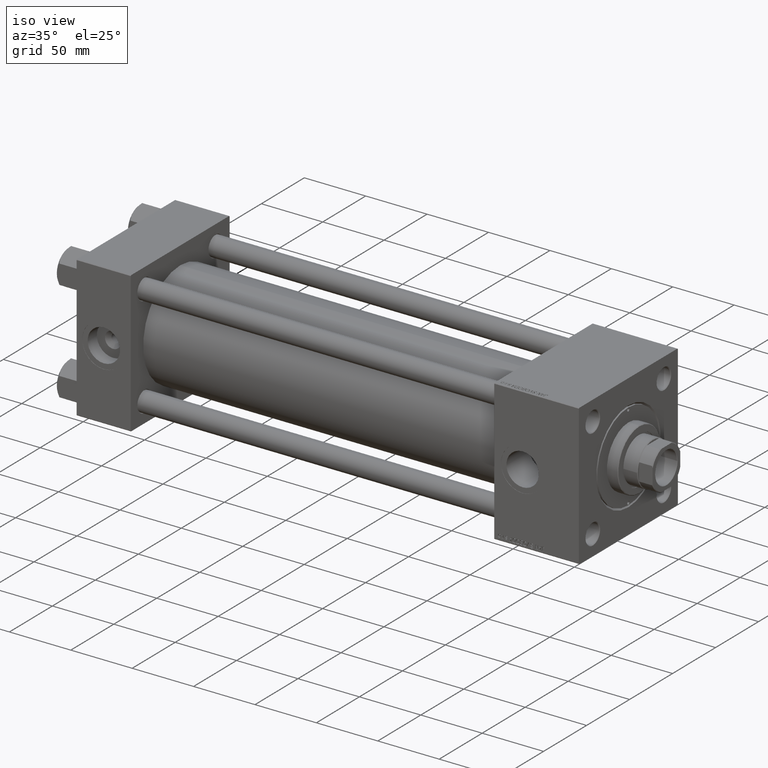
[diagram: clean part render]
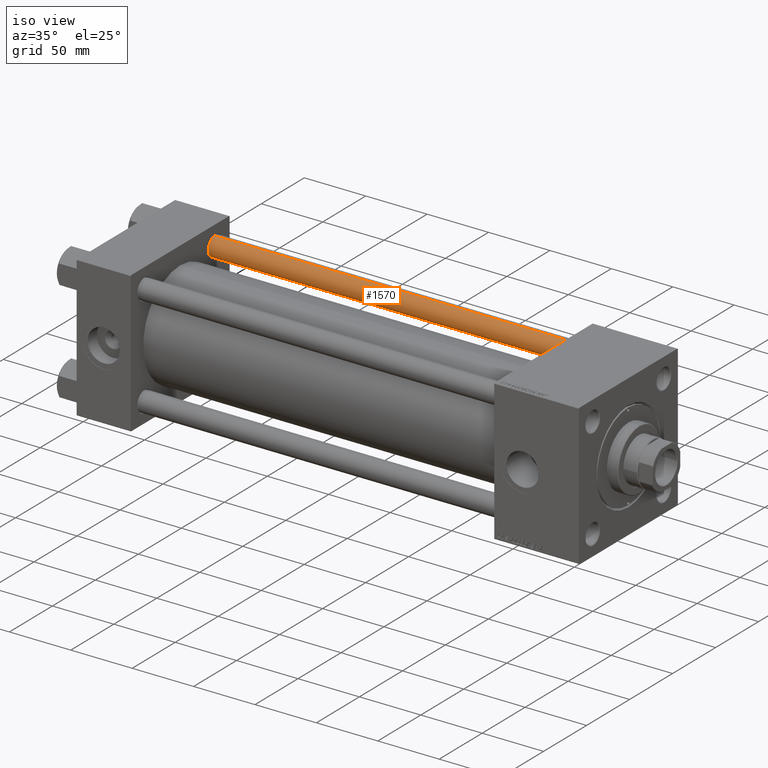
[diagram: same view with one face highlighted and labeled with its STEP entity id]
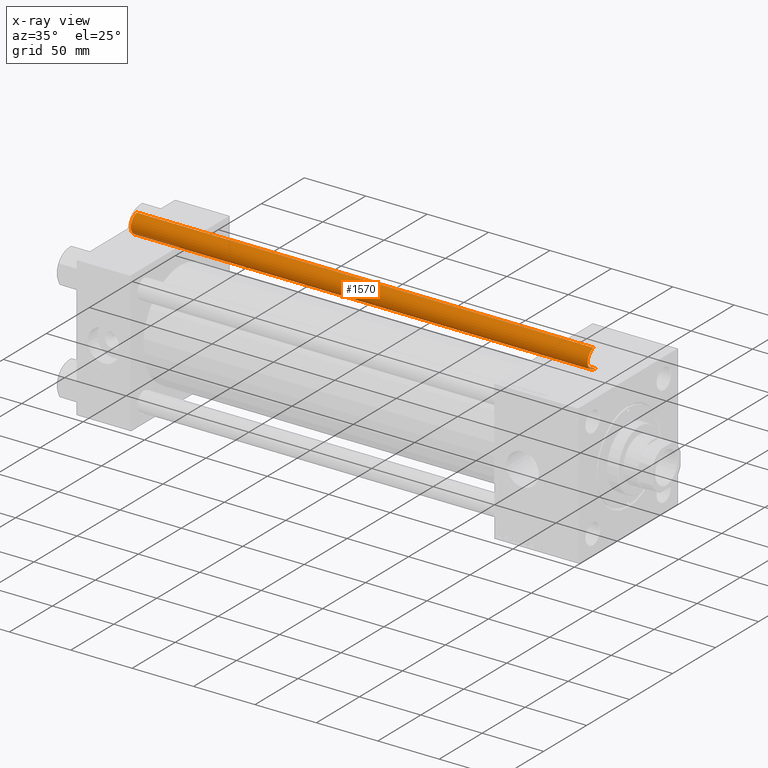
[diagram: x-ray of the same camera — body ghosted, the highlighted face saturated]
A machine part, iso view. The second image highlights one B-rep face of the part: STEP entity #1570.
The next image is the same camera in x-ray: the body ghosted, the highlighted face saturated — about 1% of this face is hidden behind the body in this view.
In plain terms, the highlighted cylindrical surface (edge-blend (fillet) strip) has radius 8 mm, axis along (-1, 0, 0).
Its self-contained STEP definition (entity closure, byte-faithful):
#671 = EDGE_CURVE ( 'NONE', #13393, #37834, #26868, .T. ) ;
#1570 = ADVANCED_FACE ( 'NONE', ( #35300 ), #15806, .T. ) ;
#4872 = DIRECTION ( 'NONE',  ( -0.000000000000000000, -0.000000000000000000, 1.000000000000000000 ) ) ;
#6290 = EDGE_CURVE ( 'NONE', #37834, #31780, #17231, .T. ) ;
#6951 = CARTESIAN_POINT ( 'NONE',  ( 8.000000000000000000, 9.797174393178825657E-16, 372.5000000000000000 ) ) ;
#7098 = CARTESIAN_POINT ( 'NONE',  ( 8.000000000000000000, 9.797174393178825657E-16, 0.5000000000000559552 ) ) ;
#7718 = DIRECTION ( 'NONE',  ( 1.000000000000000000, 0.000000000000000000, 0.000000000000000000 ) ) ;
#10803 = EDGE_LOOP ( 'NONE', ( #33344, #34754, #17193, #23743 ) ) ;
#13393 = VERTEX_POINT ( 'NONE', #19004 ) ;
#14600 = VECTOR ( 'NONE', #34033, 1000.000000000000000 ) ;
#14639 = EDGE_CURVE ( 'NONE', #35198, #13393, #31386, .T. ) ;
#15806 = CYLINDRICAL_SURFACE ( 'NONE', #20341, 8.000000000000000000 ) ;
#17193 = ORIENTED_EDGE ( 'NONE', *, *, #671, .T. ) ;
#17231 = CIRCLE ( 'NONE', #45933, 8.000000000000000000 ) ;
#19004 = CARTESIAN_POINT ( 'NONE',  ( -8.000000000000000000, 0.000000000000000000, 372.5000000000000000 ) ) ;
#19064 = AXIS2_PLACEMENT_3D ( 'NONE', #26677, #26928, #42605 ) ;
#19905 = DIRECTION ( 'NONE',  ( -0.000000000000000000, -0.000000000000000000, -1.000000000000000000 ) ) ;
#20341 = AXIS2_PLACEMENT_3D ( 'NONE', #47158, #19905, #48445 ) ;
#21203 = CARTESIAN_POINT ( 'NONE',  ( 8.000000000000000000, 9.797174393178825657E-16, 373.0000000000000000 ) ) ;
#23743 = ORIENTED_EDGE ( 'NONE', *, *, #6290, .T. ) ;
#26677 = CARTESIAN_POINT ( 'NONE',  ( 0.000000000000000000, 0.000000000000000000, 372.5000000000000000 ) ) ;
#26868 = LINE ( 'NONE', #34546, #14600 ) ;
#26928 = DIRECTION ( 'NONE',  ( 0.000000000000000000, 0.000000000000000000, -1.000000000000000000 ) ) ;
#27877 = EDGE_CURVE ( 'NONE', #35198, #31780, #49726, .T. ) ;
#31359 = CARTESIAN_POINT ( 'NONE',  ( 0.000000000000000000, 0.000000000000000000, 0.5000000000000559552 ) ) ;
#31386 = CIRCLE ( 'NONE', #19064, 8.000000000000000000 ) ;
#31780 = VERTEX_POINT ( 'NONE', #7098 ) ;
#33344 = ORIENTED_EDGE ( 'NONE', *, *, #27877, .F. ) ;
#34033 = DIRECTION ( 'NONE',  ( -0.000000000000000000, -0.000000000000000000, -1.000000000000000000 ) ) ;
#34546 = CARTESIAN_POINT ( 'NONE',  ( -8.000000000000000000, 0.000000000000000000, 373.0000000000000000 ) ) ;
#34754 = ORIENTED_EDGE ( 'NONE', *, *, #14639, .T. ) ;
#35198 = VERTEX_POINT ( 'NONE', #6951 ) ;
#35300 = FACE_OUTER_BOUND ( 'NONE', #10803, .T. ) ;
#37834 = VERTEX_POINT ( 'NONE', #49545 ) ;
#39475 = VECTOR ( 'NONE', #45581, 1000.000000000000000 ) ;
#42605 = DIRECTION ( 'NONE',  ( 1.000000000000000000, 0.000000000000000000, 0.000000000000000000 ) ) ;
#45581 = DIRECTION ( 'NONE',  ( -0.000000000000000000, -0.000000000000000000, -1.000000000000000000 ) ) ;
#45933 = AXIS2_PLACEMENT_3D ( 'NONE', #31359, #4872, #7718 ) ;
#47158 = CARTESIAN_POINT ( 'NONE',  ( 0.000000000000000000, 0.000000000000000000, 373.0000000000000000 ) ) ;
#48445 = DIRECTION ( 'NONE',  ( -1.000000000000000000, 0.000000000000000000, 0.000000000000000000 ) ) ;
#49545 = CARTESIAN_POINT ( 'NONE',  ( -8.000000000000000000, 0.000000000000000000, 0.5000000000000559552 ) ) ;
#49726 = LINE ( 'NONE', #21203, #39475 ) ;